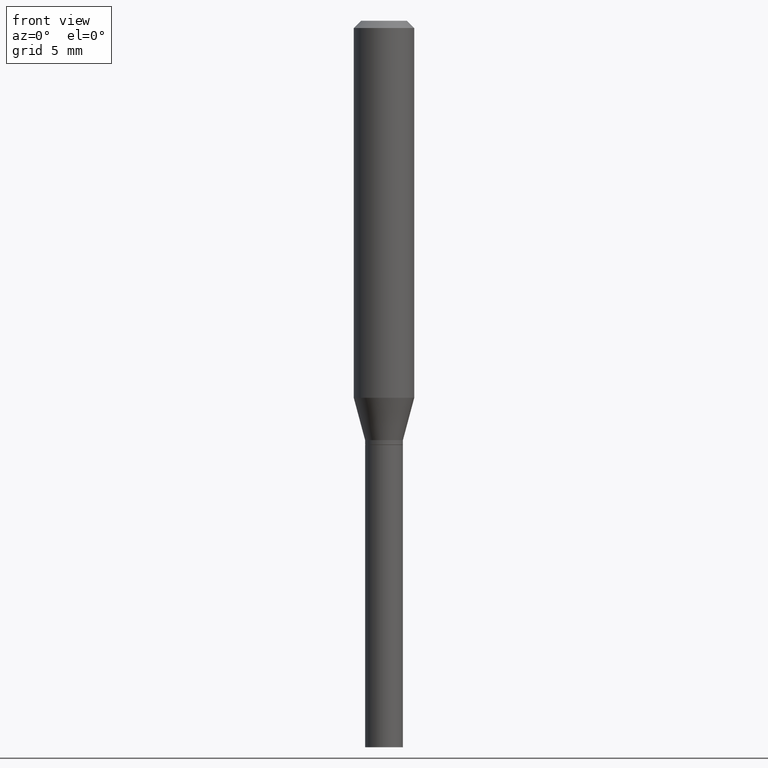
[diagram: clean part render]
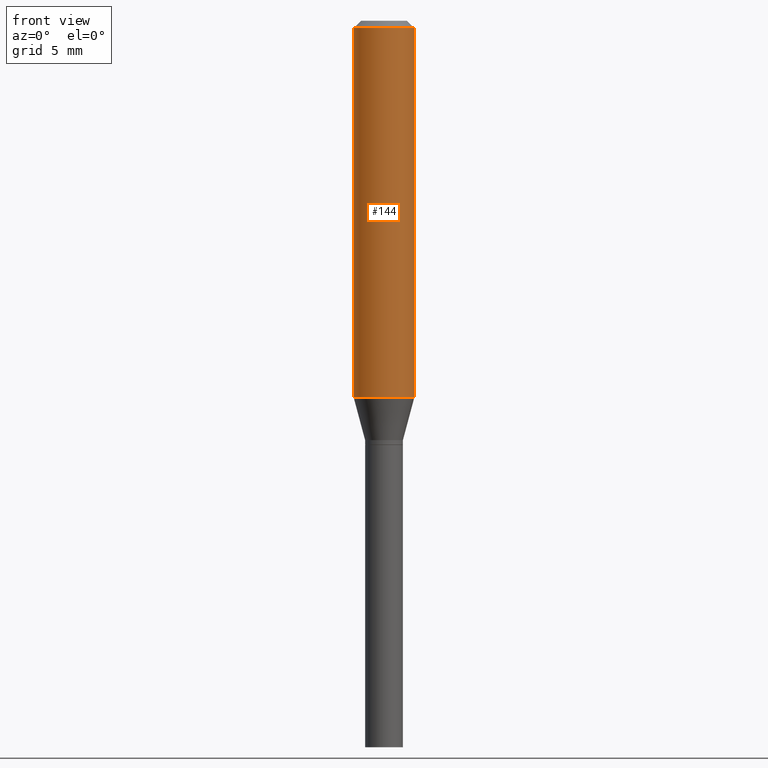
[diagram: same view with one face highlighted and labeled with its STEP entity id]
A machine part, front view. The second image highlights one B-rep face of the part: STEP entity #144.
In plain terms, the highlighted cylindrical surface (edge-blend (fillet) strip) has radius 1.5875 mm, axis along (-0, 0, 1).
Its self-contained STEP definition (entity closure, byte-faithful):
#36 = DIRECTION ( 'NONE',  ( 1.000000000000000000, -6.982962677686262766E-15, 0.000000000000000000 ) ) ;
#37 = ORIENTED_EDGE ( 'NONE', *, *, #355, .T. ) ;
#43 = VERTEX_POINT ( 'NONE', #221 ) ;
#56 = CARTESIAN_POINT ( 'NONE',  ( 0.06250000000000000000, -4.364351673553916694E-16, 3.047610484872459871E-30 ) ) ;
#61 = DIRECTION ( 'NONE',  ( -2.445468806185136877E-29, 3.491481338843145188E-15, 1.000000000000000000 ) ) ;
#70 = CARTESIAN_POINT ( 'NONE',  ( -0.06250000000000000000, 4.440892098500626162E-16, -3.074334431409316114E-30 ) ) ;
#76 = DIRECTION ( 'NONE',  ( -2.445468806185136597E-29, 3.491481338843145583E-15, 1.000000000000000000 ) ) ;
#78 = CIRCLE ( 'NONE', #435, 0.06250000000000000000 ) ;
#82 = EDGE_LOOP ( 'NONE', ( #458, #37, #106, #153 ) ) ;
#106 = ORIENTED_EDGE ( 'NONE', *, *, #238, .T. ) ;
#136 = CARTESIAN_POINT ( 'NONE',  ( -0.06250000000000000000, -2.273319564457434988E-15, -0.7782968060221319151 ) ) ;
#144 = ADVANCED_FACE ( 'NONE', ( #346 ), #344, .T. ) ;
#147 = VERTEX_POINT ( 'NONE', #136 ) ;
#148 = CARTESIAN_POINT ( 'NONE',  ( 1.903300561080647915E-29, -2.717408774307497209E-15, -0.7782968060221319151 ) ) ;
#152 = DIRECTION ( 'NONE',  ( -2.445468806185136877E-29, 3.491481338843145188E-15, 1.000000000000000000 ) ) ;
#153 = ORIENTED_EDGE ( 'NONE', *, *, #328, .F. ) ;
#182 = CARTESIAN_POINT ( 'NONE',  ( 3.668203209277705088E-31, -5.237222008264718399E-17, -0.01499999999999999944 ) ) ;
#193 = VECTOR ( 'NONE', #152, 39.37007874015748143 ) ;
#208 = AXIS2_PLACEMENT_3D ( 'NONE', #148, #76, #36 ) ;
#221 = CARTESIAN_POINT ( 'NONE',  ( 0.06250000000000000000, -3.153843941662889668E-15, -0.7782968060221319151 ) ) ;
#227 = CIRCLE ( 'NONE', #208, 0.06250000000000000000 ) ;
#233 = AXIS2_PLACEMENT_3D ( 'NONE', #279, #304, #421 ) ;
#238 = EDGE_CURVE ( 'NONE', #43, #365, #315, .T. ) ;
#274 = EDGE_CURVE ( 'NONE', #147, #357, #358, .T. ) ;
#279 = CARTESIAN_POINT ( 'NONE',  ( 0.000000000000000000, 0.000000000000000000, 0.000000000000000000 ) ) ;
#295 = DIRECTION ( 'NONE',  ( -2.445468806185136597E-29, 3.491481338843145583E-15, 1.000000000000000000 ) ) ;
#304 = DIRECTION ( 'NONE',  ( -2.445468806185136597E-29, 3.491481338843145583E-15, 1.000000000000000000 ) ) ;
#315 = LINE ( 'NONE', #56, #382 ) ;
#328 = EDGE_CURVE ( 'NONE', #357, #365, #78, .T. ) ;
#344 = CYLINDRICAL_SURFACE ( 'NONE', #233, 0.06250000000000000000 ) ;
#346 = FACE_OUTER_BOUND ( 'NONE', #82, .T. ) ;
#352 = CARTESIAN_POINT ( 'NONE',  ( 0.06250000000000000000, -4.888073874380388472E-16, -0.01499999999999999944 ) ) ;
#355 = EDGE_CURVE ( 'NONE', #147, #43, #227, .T. ) ;
#357 = VERTEX_POINT ( 'NONE', #364 ) ;
#358 = LINE ( 'NONE', #70, #193 ) ;
#364 = CARTESIAN_POINT ( 'NONE',  ( -0.06250000000000000000, -9.408012873450095281E-16, -0.01499999999999999944 ) ) ;
#365 = VERTEX_POINT ( 'NONE', #352 ) ;
#382 = VECTOR ( 'NONE', #61, 39.37007874015748143 ) ;
#393 = DIRECTION ( 'NONE',  ( 1.000000000000000000, -6.982962677686266711E-15, 0.000000000000000000 ) ) ;
#421 = DIRECTION ( 'NONE',  ( 1.000000000000000000, -6.982962677686266711E-15, 4.876176775795935793E-29 ) ) ;
#435 = AXIS2_PLACEMENT_3D ( 'NONE', #182, #295, #393 ) ;
#458 = ORIENTED_EDGE ( 'NONE', *, *, #274, .F. ) ;